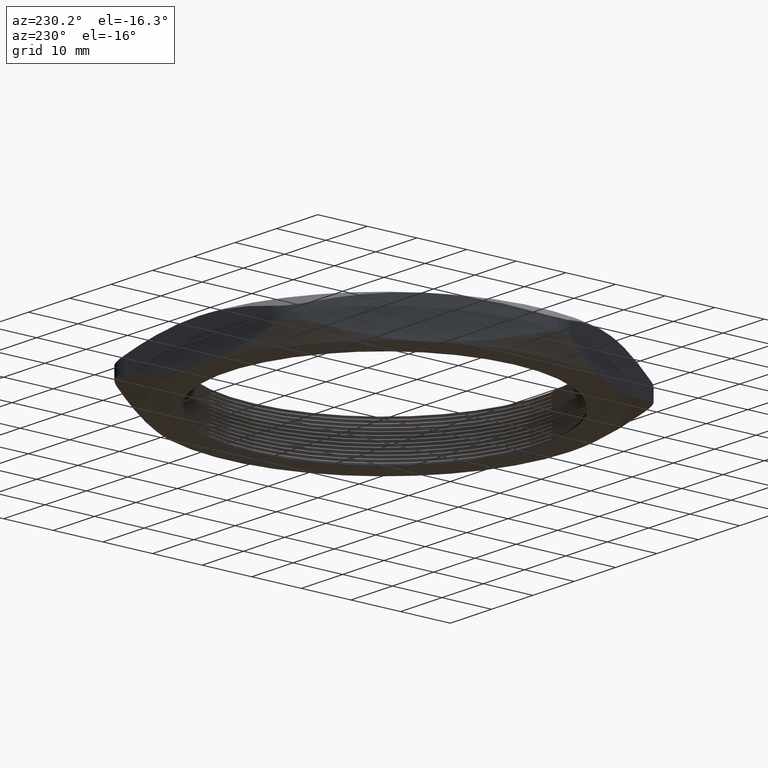
[diagram: clean part render]
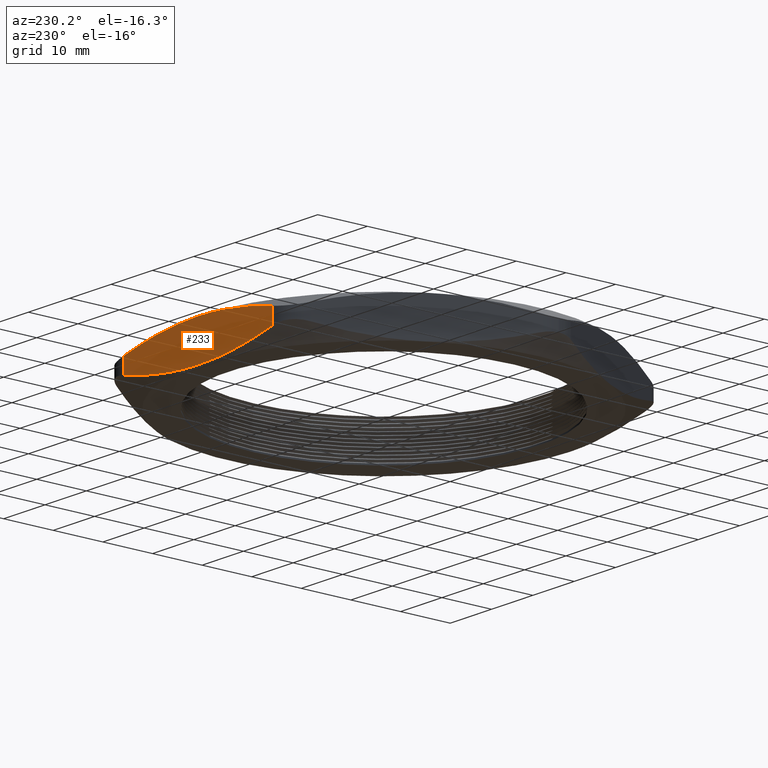
[diagram: same view with one face highlighted and labeled with its STEP entity id]
A machine part, auxiliary view. The second image highlights one B-rep face of the part: STEP entity #233.
In plain terms, the highlighted planar face has unit normal (0, -1, 0).
Its self-contained STEP definition (entity closure, byte-faithful):
#212 = VERTEX_POINT ( 'NONE', #1439 ) ;
#213 = ORIENTED_EDGE ( 'NONE', *, *, #214, .F. ) ;
#214 = EDGE_CURVE ( 'NONE', #215, #212, #1437, .T. ) ;
#215 = VERTEX_POINT ( 'NONE', #1438 ) ;
#216 = ORIENTED_EDGE ( 'NONE', *, *, #217, .F. ) ;
#217 = EDGE_CURVE ( 'NONE', #218, #215, #1489, .T. ) ;
#218 = VERTEX_POINT ( 'NONE', #1488 ) ;
#219 = ORIENTED_EDGE ( 'NONE', *, *, #220, .T. ) ;
#220 = EDGE_CURVE ( 'NONE', #218, #221, #1487, .T. ) ;
#221 = VERTEX_POINT ( 'NONE', #1473 ) ;
#222 = ORIENTED_EDGE ( 'NONE', *, *, #223, .F. ) ;
#223 = EDGE_CURVE ( 'NONE', #238, #221, #1470, .T. ) ;
#233 = ADVANCED_FACE ( 'NONE', ( #1499 ), #1498, .F. ) ;
#234 = EDGE_LOOP ( 'NONE', ( #235, #239, #213, #216, #219, #222 ) ) ;
#235 = ORIENTED_EDGE ( 'NONE', *, *, #236, .F. ) ;
#236 = EDGE_CURVE ( 'NONE', #237, #238, #1540, .T. ) ;
#237 = VERTEX_POINT ( 'NONE', #1539 ) ;
#238 = VERTEX_POINT ( 'NONE', #1541 ) ;
#239 = ORIENTED_EDGE ( 'NONE', *, *, #240, .T. ) ;
#240 = EDGE_CURVE ( 'NONE', #237, #212, #1538, .T. ) ;
#1431 = CARTESIAN_POINT ( 'NONE',  ( -0.5904696223947518700, 1.475000000000000300, 0.2448517217446111700 ) ) ;
#1432 = CARTESIAN_POINT ( 'NONE',  ( -0.4731883953060971300, 1.474999999999999900, 0.2678189029237696400 ) ) ;
#1433 = CARTESIAN_POINT ( 'NONE',  ( -0.4144122977619535400, 1.474999999999999600, 0.2776458181961936100 ) ) ;
#1434 = CARTESIAN_POINT ( 'NONE',  ( -0.2376287417481133800, 1.474999999999999900, 0.3015596807814267000 ) ) ;
#1435 = CARTESIAN_POINT ( 'NONE',  ( -0.1191594983095942800, 1.475000000000000300, 0.3100000000000000000 ) ) ;
#1436 = CARTESIAN_POINT ( 'NONE',  ( 0.0000000000000000000, 1.474999999999999900, 0.3100000000000000000 ) ) ;
#1437 = B_SPLINE_CURVE_WITH_KNOTS ( 'NONE', 3,
 ( #1436, #1435, #1434, #1433, #1432, #1431, #1491, #1490 ),
 .UNSPECIFIED., .F., .F.,
 ( 4, 2, 2, 4 ),
 ( 0.1187557659421772400, 0.1278203547804334600, 0.1323526491995615800, 0.1368849436186896900 ),
 .UNSPECIFIED. ) ;
#1438 = CARTESIAN_POINT ( 'NONE',  ( 0.0000000000000000000, 1.474999999999999900, 0.3100000000000000000 ) ) ;
#1439 = CARTESIAN_POINT ( 'NONE',  ( -0.7072540797573034800, 1.474999999999999900, 0.2171635426208832200 ) ) ;
#1462 = CARTESIAN_POINT ( 'NONE',  ( 0.2985984673332685600, 1.474999999999999900, 0.01710969050047980700 ) ) ;
#1463 = CARTESIAN_POINT ( 'NONE',  ( 0.2389809541913165400, 1.475000000000000300, 0.01093891151175654400 ) ) ;
#1464 = CARTESIAN_POINT ( 'NONE',  ( 0.2089873998950202100, 1.474999999999999900, 0.008334326575858619000 ) ) ;
#1465 = CARTESIAN_POINT ( 'NONE',  ( 0.1192025980619793000, 1.474999999999999600, 0.002087349527884017400 ) ) ;
#1466 = CARTESIAN_POINT ( 'NONE',  ( 0.05951594662061585100, 1.474999999999999900, 2.100908491221296100E-018 ) ) ;
#1467 = CARTESIAN_POINT ( 'NONE',  ( 0.0000000000000000000, 1.474999999999999400, 0.0000000000000000000 ) ) ;
#1470 = B_SPLINE_CURVE_WITH_KNOTS ( 'NONE', 3,
 ( #1467, #1466, #1465, #1464, #1463, #1462, #1519, #1518, #1517, #1516 ),
 .UNSPECIFIED., .F., .F.,
 ( 4, 2, 2, 2, 4 ),
 ( 0.06118076068016868600, 0.06570469708190845900, 0.06796666528277833800, 0.07022863348364823100, 0.07927650628712776300 ),
 .UNSPECIFIED. ) ;
#1473 = CARTESIAN_POINT ( 'NONE',  ( 0.7072540797572217700, 1.474999999999999900, 0.09283645737909668200 ) ) ;
#1474 = DIRECTION ( 'NONE',  ( 0.0000000000000000000, 0.0000000000000000000, -1.000000000000000000 ) ) ;
#1475 = CARTESIAN_POINT ( 'NONE',  ( 0.0000000000000000000, 1.474999999999999900, 0.3100000000000000000 ) ) ;
#1476 = CARTESIAN_POINT ( 'NONE',  ( 0.05951594662062224100, 1.474999999999999900, 0.3099999999999998900 ) ) ;
#1477 = CARTESIAN_POINT ( 'NONE',  ( 0.1192025980619918900, 1.474999999999999900, 0.3079126504721156300 ) ) ;
#1478 = CARTESIAN_POINT ( 'NONE',  ( 0.2089873998950420000, 1.474999999999999600, 0.3016656734241396400 ) ) ;
#1479 = CARTESIAN_POINT ( 'NONE',  ( 0.2389809541913414700, 1.474999999999999900, 0.2990610884882410900 ) ) ;
#1480 = CARTESIAN_POINT ( 'NONE',  ( 0.2985984673332993100, 1.474999999999999900, 0.2928903094995167200 ) ) ;
#1481 = CARTESIAN_POINT ( 'NONE',  ( 0.3282783849973260900, 1.474999999999999400, 0.2893213260496941800 ) ) ;
#1482 = CARTESIAN_POINT ( 'NONE',  ( 0.4760725403496576200, 1.475000000000000300, 0.2692039296978660000 ) ) ;
#1483 = CARTESIAN_POINT ( 'NONE',  ( 0.5923712532309209900, 1.474999999999999400, 0.2458409850411091800 ) ) ;
#1484 = CARTESIAN_POINT ( 'NONE',  ( 0.7072540797572920400, 1.474999999999999900, 0.2171635426208858000 ) ) ;
#1485 = VECTOR ( 'NONE', #1474, 39.37007874015748100 ) ;
#1486 = CARTESIAN_POINT ( 'NONE',  ( 0.7072540797572920400, 1.474999999999999900, 0.3100000000000000000 ) ) ;
#1487 = LINE ( 'NONE', #1486, #1485 ) ;
#1488 = CARTESIAN_POINT ( 'NONE',  ( 0.7072540797572920400, 1.474999999999999900, 0.2171635426208858000 ) ) ;
#1489 = B_SPLINE_CURVE_WITH_KNOTS ( 'NONE', 3,
 ( #1484, #1483, #1482, #1481, #1480, #1479, #1478, #1477, #1476, #1475 ),
 .UNSPECIFIED., .F., .F.,
 ( 4, 2, 2, 2, 4 ),
 ( 0.1006460023702001200, 0.1097008841561886700, 0.1119646046026858100, 0.1142283250491829500, 0.1187557659421772400 ),
 .UNSPECIFIED. ) ;
#1490 = CARTESIAN_POINT ( 'NONE',  ( -0.7072540797573034800, 1.474999999999999900, 0.2171635426208832200 ) ) ;
#1491 = CARTESIAN_POINT ( 'NONE',  ( -0.6491098701173609900, 1.474999999999999900, 0.2316776982561132300 ) ) ;
#1497 = AXIS2_PLACEMENT_3D ( 'NONE', #1544, #1543, #1542 ) ;
#1498 = PLANE ( 'NONE',  #1497 ) ;
#1499 = FACE_OUTER_BOUND ( 'NONE', #234, .T. ) ;
#1516 = CARTESIAN_POINT ( 'NONE',  ( 0.7072540797572217700, 1.474999999999999900, 0.09283645737909668200 ) ) ;
#1517 = CARTESIAN_POINT ( 'NONE',  ( 0.5923712532308620400, 1.475000000000000300, 0.06415901495887818600 ) ) ;
#1518 = CARTESIAN_POINT ( 'NONE',  ( 0.4760725403496089400, 1.475000000000000300, 0.04079607030212609200 ) ) ;
#1519 = CARTESIAN_POINT ( 'NONE',  ( 0.3282783849972921200, 1.475000000000000300, 0.02067867395030159900 ) ) ;
#1527 = DIRECTION ( 'NONE',  ( 0.0000000000000000000, 0.0000000000000000000, 1.000000000000000000 ) ) ;
#1528 = VECTOR ( 'NONE', #1527, 39.37007874015748100 ) ;
#1529 = CARTESIAN_POINT ( 'NONE',  ( -0.7072540797572920400, 1.474999999999999900, 0.3100000000000000000 ) ) ;
#1530 = CARTESIAN_POINT ( 'NONE',  ( 0.0000000000000000000, 1.474999999999999400, 0.0000000000000000000 ) ) ;
#1531 = CARTESIAN_POINT ( 'NONE',  ( -0.1191594983095947700, 1.475000000000000300, -1.867474214418930500E-018 ) ) ;
#1532 = CARTESIAN_POINT ( 'NONE',  ( -0.2376287417481137700, 1.474999999999999900, 0.008440319218573405800 ) ) ;
#1533 = CARTESIAN_POINT ( 'NONE',  ( -0.4144122977619538700, 1.474999999999999900, 0.03235418180380653100 ) ) ;
#1534 = CARTESIAN_POINT ( 'NONE',  ( -0.4731883953060975800, 1.474999999999999400, 0.04218109707623047400 ) ) ;
#1535 = CARTESIAN_POINT ( 'NONE',  ( -0.5904696223947527600, 1.474999999999999900, 0.06514827825538901900 ) ) ;
#1536 = CARTESIAN_POINT ( 'NONE',  ( -0.6491098701173616500, 1.475000000000000300, 0.07832230174388690700 ) ) ;
#1537 = CARTESIAN_POINT ( 'NONE',  ( -0.7072540797573040300, 1.474999999999999900, 0.09283645737911694300 ) ) ;
#1538 = LINE ( 'NONE', #1529, #1528 ) ;
#1539 = CARTESIAN_POINT ( 'NONE',  ( -0.7072540797573040300, 1.474999999999999900, 0.09283645737911694300 ) ) ;
#1540 = B_SPLINE_CURVE_WITH_KNOTS ( 'NONE', 3,
 ( #1537, #1536, #1535, #1534, #1533, #1532, #1531, #1530 ),
 .UNSPECIFIED., .F., .F.,
 ( 4, 2, 2, 4 ),
 ( 0.04306561599626993600, 0.04759440216724462200, 0.05212318833821930800, 0.06118076068016868600 ),
 .UNSPECIFIED. ) ;
#1541 = CARTESIAN_POINT ( 'NONE',  ( 0.0000000000000000000, 1.474999999999999400, 0.0000000000000000000 ) ) ;
#1542 = DIRECTION ( 'NONE',  ( 0.0000000000000000000, 0.0000000000000000000, -1.000000000000000000 ) ) ;
#1543 = DIRECTION ( 'NONE',  ( 0.0000000000000000000, -1.000000000000000000, 0.0000000000000000000 ) ) ;
#1544 = CARTESIAN_POINT ( 'NONE',  ( 0.8515916470546984800, 1.474999999999999900, 0.3100000000000000000 ) ) ;